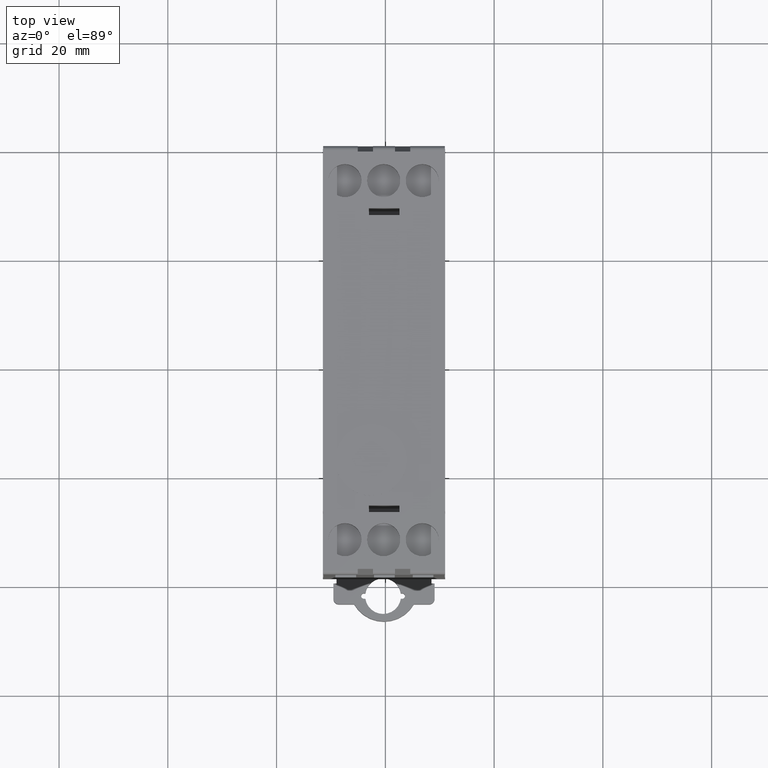
[diagram: clean part render]
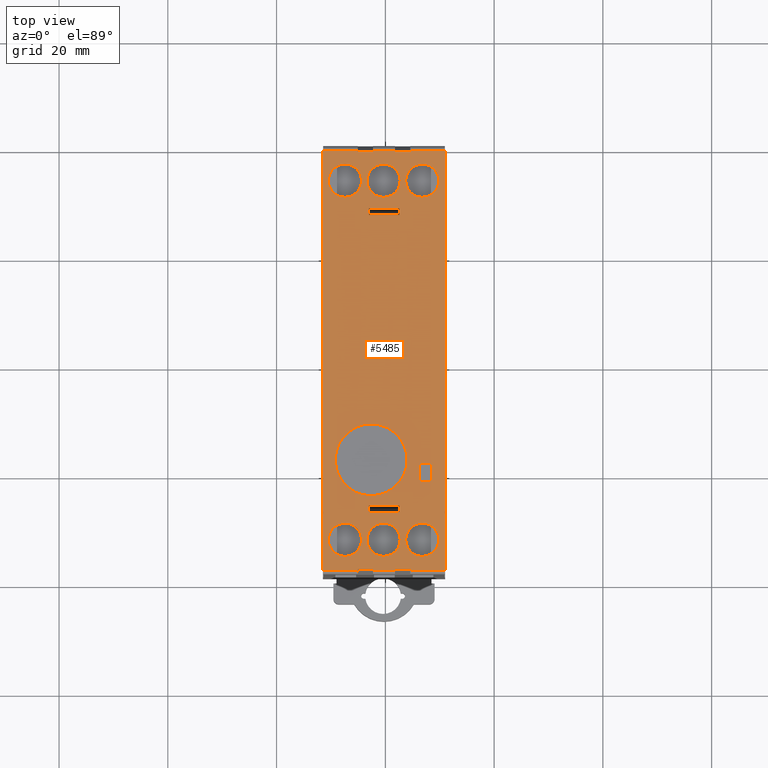
[diagram: same view with one face highlighted and labeled with its STEP entity id]
A machine part, top view. The second image highlights one B-rep face of the part: STEP entity #5485.
In plain terms, the highlighted planar face has unit normal (0, 0, 1).
Its self-contained STEP definition (entity closure, byte-faithful):
#988=DIRECTION('',(1.E0,0.E0,0.E0));
#989=VECTOR('',#988,2.794E0);
#990=CARTESIAN_POINT('',(-5.073141289026E0,3.839708004937E1,1.010173863268E2));
#991=LINE('',#990,#989);
#996=DIRECTION('',(0.E0,-1.E0,0.E0));
#997=VECTOR('',#996,2.54E-1);
#998=CARTESIAN_POINT('',(-5.073141289026E0,3.865108004937E1,1.010173863268E2));
#999=LINE('',#998,#997);
#1018=DIRECTION('',(1.E0,0.E0,0.E0));
#1019=VECTOR('',#1018,6.373199999998E0);
#1020=CARTESIAN_POINT('',(-1.144634128902E1,3.865108004937E1,1.010173863268E2));
#1021=LINE('',#1020,#1019);
#1036=DIRECTION('',(0.E0,1.E0,0.E0));
#1037=VECTOR('',#1036,7.727599999999E1);
#1038=CARTESIAN_POINT('',(-1.144634128902E1,-3.862491995062E1,
1.010173863268E2));
#1039=LINE('',#1038,#1037);
#1226=DIRECTION('',(-1.E0,0.E0,0.E0));
#1227=VECTOR('',#1226,6.373199999998E0);
#1228=CARTESIAN_POINT('',(-5.073141289026E0,-3.862491995062E1,
1.010173863268E2));
#1229=LINE('',#1228,#1227);
#1234=DIRECTION('',(0.E0,1.E0,1.678447407306E-13));
#1235=VECTOR('',#1234,2.540000000001E-1);
#1236=CARTESIAN_POINT('',(-5.073141289026E0,-3.862491995062E1,
1.010173863268E2));
#1237=LINE('',#1236,#1235);
#1238=DIRECTION('',(0.E0,-1.E0,0.E0));
#1239=VECTOR('',#1238,2.54E-1);
#1240=CARTESIAN_POINT('',(4.578858710974E0,3.865108004937E1,1.010173863268E2));
#1241=LINE('',#1240,#1239);
#1242=DIRECTION('',(0.E0,-1.E0,-1.678447407306E-13));
#1243=VECTOR('',#1242,2.540000000001E-1);
#1244=CARTESIAN_POINT('',(4.578858710974E0,-3.837091995062E1,1.010173863268E2));
#1245=LINE('',#1244,#1243);
#1246=DIRECTION('',(1.E0,0.E0,0.E0));
#1247=VECTOR('',#1246,2.794E0);
#1248=CARTESIAN_POINT('',(1.784858710974E0,-3.837091995062E1,1.010173863268E2));
#1249=LINE('',#1248,#1247);
#1250=DIRECTION('',(0.E0,1.E0,1.678447407306E-13));
#1251=VECTOR('',#1250,2.540000000001E-1);
#1252=CARTESIAN_POINT('',(1.784858710974E0,-3.862491995062E1,1.010173863268E2));
#1253=LINE('',#1252,#1251);
#1254=DIRECTION('',(0.E0,-1.E0,-1.678447407306E-13));
#1255=VECTOR('',#1254,2.540000000001E-1);
#1256=CARTESIAN_POINT('',(-2.279141289026E0,-3.837091995062E1,
1.010173863268E2));
#1257=LINE('',#1256,#1255);
#1258=DIRECTION('',(1.E0,0.E0,0.E0));
#1259=VECTOR('',#1258,2.794E0);
#1260=CARTESIAN_POINT('',(-5.073141289026E0,-3.837091995062E1,
1.010173863268E2));
#1261=LINE('',#1260,#1259);
#1262=CARTESIAN_POINT('',(6.790858710976E0,3.303308004937E1,1.010173863268E2));
#1263=DIRECTION('',(0.E0,0.E0,-1.E0));
#1264=DIRECTION('',(-1.E0,0.E0,0.E0));
#1265=AXIS2_PLACEMENT_3D('',#1262,#1263,#1264);
#1267=CARTESIAN_POINT('',(6.790858710976E0,3.303308004937E1,1.010173863268E2));
#1268=DIRECTION('',(0.E0,0.E0,-1.E0));
#1269=DIRECTION('',(0.E0,-1.E0,0.E0));
#1270=AXIS2_PLACEMENT_3D('',#1267,#1268,#1269);
#1272=CARTESIAN_POINT('',(6.790858710976E0,3.303308004937E1,1.010173863268E2));
#1273=DIRECTION('',(0.E0,0.E0,-1.E0));
#1274=DIRECTION('',(1.E0,0.E0,0.E0));
#1275=AXIS2_PLACEMENT_3D('',#1272,#1273,#1274);
#1277=CARTESIAN_POINT('',(6.790858710976E0,3.303308004937E1,1.010173863268E2));
#1278=DIRECTION('',(0.E0,0.E0,-1.E0));
#1279=DIRECTION('',(0.E0,1.E0,0.E0));
#1280=AXIS2_PLACEMENT_3D('',#1277,#1278,#1279);
#1282=CARTESIAN_POINT('',(-3.211412890243E-1,3.303308004937E1,
1.010173863268E2));
#1283=DIRECTION('',(0.E0,0.E0,-1.E0));
#1284=DIRECTION('',(-1.E0,0.E0,0.E0));
#1285=AXIS2_PLACEMENT_3D('',#1282,#1283,#1284);
#1287=CARTESIAN_POINT('',(-3.211412890243E-1,3.303308004937E1,
1.010173863268E2));
#1288=DIRECTION('',(0.E0,0.E0,-1.E0));
#1289=DIRECTION('',(0.E0,-1.E0,0.E0));
#1290=AXIS2_PLACEMENT_3D('',#1287,#1288,#1289);
#1292=CARTESIAN_POINT('',(-3.211412890243E-1,3.303308004937E1,
1.010173863268E2));
#1293=DIRECTION('',(0.E0,0.E0,-1.E0));
#1294=DIRECTION('',(1.E0,0.E0,0.E0));
#1295=AXIS2_PLACEMENT_3D('',#1292,#1293,#1294);
#1297=CARTESIAN_POINT('',(-3.211412890243E-1,3.303308004937E1,
1.010173863268E2));
#1298=DIRECTION('',(0.E0,0.E0,-1.E0));
#1299=DIRECTION('',(0.E0,1.E0,0.E0));
#1300=AXIS2_PLACEMENT_3D('',#1297,#1298,#1299);
#1302=CARTESIAN_POINT('',(-7.433141289024E0,3.303308004937E1,1.010173863268E2));
#1303=DIRECTION('',(0.E0,0.E0,-1.E0));
#1304=DIRECTION('',(-1.E0,0.E0,0.E0));
#1305=AXIS2_PLACEMENT_3D('',#1302,#1303,#1304);
#1307=CARTESIAN_POINT('',(-7.433141289024E0,3.303308004937E1,1.010173863268E2));
#1308=DIRECTION('',(0.E0,0.E0,-1.E0));
#1309=DIRECTION('',(0.E0,-1.E0,0.E0));
#1310=AXIS2_PLACEMENT_3D('',#1307,#1308,#1309);
#1312=CARTESIAN_POINT('',(-7.433141289024E0,3.303308004937E1,1.010173863268E2));
#1313=DIRECTION('',(0.E0,0.E0,-1.E0));
#1314=DIRECTION('',(1.E0,0.E0,0.E0));
#1315=AXIS2_PLACEMENT_3D('',#1312,#1313,#1314);
#1317=CARTESIAN_POINT('',(-7.433141289024E0,3.303308004937E1,1.010173863268E2));
#1318=DIRECTION('',(0.E0,0.E0,-1.E0));
#1319=DIRECTION('',(0.E0,1.E0,0.E0));
#1320=AXIS2_PLACEMENT_3D('',#1317,#1318,#1319);
#1322=CARTESIAN_POINT('',(6.790858710976E0,-3.300691995063E1,1.010173863268E2));
#1323=DIRECTION('',(0.E0,0.E0,-1.E0));
#1324=DIRECTION('',(1.E0,0.E0,0.E0));
#1325=AXIS2_PLACEMENT_3D('',#1322,#1323,#1324);
#1327=CARTESIAN_POINT('',(6.790858710976E0,-3.300691995063E1,1.010173863268E2));
#1328=DIRECTION('',(0.E0,0.E0,-1.E0));
#1329=DIRECTION('',(0.E0,1.E0,0.E0));
#1330=AXIS2_PLACEMENT_3D('',#1327,#1328,#1329);
#1332=CARTESIAN_POINT('',(6.790858710976E0,-3.300691995063E1,1.010173863268E2));
#1333=DIRECTION('',(0.E0,0.E0,-1.E0));
#1334=DIRECTION('',(-1.E0,0.E0,0.E0));
#1335=AXIS2_PLACEMENT_3D('',#1332,#1333,#1334);
#1337=CARTESIAN_POINT('',(6.790858710976E0,-3.300691995063E1,1.010173863268E2));
#1338=DIRECTION('',(0.E0,0.E0,-1.E0));
#1339=DIRECTION('',(0.E0,-1.E0,0.E0));
#1340=AXIS2_PLACEMENT_3D('',#1337,#1338,#1339);
#1342=CARTESIAN_POINT('',(-3.211412890243E-1,-3.300691995063E1,
1.010173863268E2));
#1343=DIRECTION('',(0.E0,0.E0,-1.E0));
#1344=DIRECTION('',(1.E0,0.E0,0.E0));
#1345=AXIS2_PLACEMENT_3D('',#1342,#1343,#1344);
#1347=CARTESIAN_POINT('',(-3.211412890243E-1,-3.300691995063E1,
1.010173863268E2));
#1348=DIRECTION('',(0.E0,0.E0,-1.E0));
#1349=DIRECTION('',(0.E0,1.E0,0.E0));
#1350=AXIS2_PLACEMENT_3D('',#1347,#1348,#1349);
#1352=CARTESIAN_POINT('',(-3.211412890243E-1,-3.300691995063E1,
1.010173863268E2));
#1353=DIRECTION('',(0.E0,0.E0,-1.E0));
#1354=DIRECTION('',(-1.E0,0.E0,0.E0));
#1355=AXIS2_PLACEMENT_3D('',#1352,#1353,#1354);
#1357=CARTESIAN_POINT('',(-3.211412890243E-1,-3.300691995063E1,
1.010173863268E2));
#1358=DIRECTION('',(0.E0,0.E0,-1.E0));
#1359=DIRECTION('',(0.E0,-1.E0,0.E0));
#1360=AXIS2_PLACEMENT_3D('',#1357,#1358,#1359);
#1362=CARTESIAN_POINT('',(-7.433141289024E0,-3.300691995063E1,
1.010173863268E2));
#1363=DIRECTION('',(0.E0,0.E0,-1.E0));
#1364=DIRECTION('',(1.E0,0.E0,0.E0));
#1365=AXIS2_PLACEMENT_3D('',#1362,#1363,#1364);
#1367=CARTESIAN_POINT('',(-7.433141289024E0,-3.300691995063E1,
1.010173863268E2));
#1368=DIRECTION('',(0.E0,0.E0,-1.E0));
#1369=DIRECTION('',(0.E0,1.E0,0.E0));
#1370=AXIS2_PLACEMENT_3D('',#1367,#1368,#1369);
#1372=CARTESIAN_POINT('',(-7.433141289024E0,-3.300691995063E1,
1.010173863268E2));
#1373=DIRECTION('',(0.E0,0.E0,-1.E0));
#1374=DIRECTION('',(-1.E0,0.E0,0.E0));
#1375=AXIS2_PLACEMENT_3D('',#1372,#1373,#1374);
#1377=CARTESIAN_POINT('',(-7.433141289024E0,-3.300691995063E1,
1.010173863268E2));
#1378=DIRECTION('',(0.E0,0.E0,-1.E0));
#1379=DIRECTION('',(0.E0,-1.E0,0.E0));
#1380=AXIS2_PLACEMENT_3D('',#1377,#1378,#1379);
#1382=CARTESIAN_POINT('',(-2.607141289024E0,-1.830491995063E1,
1.010173863268E2));
#1383=DIRECTION('',(0.E0,0.E0,-1.E0));
#1384=DIRECTION('',(-1.E0,0.E0,0.E0));
#1385=AXIS2_PLACEMENT_3D('',#1382,#1383,#1384);
#1387=CARTESIAN_POINT('',(-2.607141289024E0,-1.830491995063E1,
1.010173863268E2));
#1388=DIRECTION('',(0.E0,0.E0,-1.E0));
#1389=DIRECTION('',(0.E0,-1.E0,0.E0));
#1390=AXIS2_PLACEMENT_3D('',#1387,#1388,#1389);
#1392=CARTESIAN_POINT('',(-2.607141289024E0,-1.830491995063E1,
1.010173863268E2));
#1393=DIRECTION('',(0.E0,0.E0,-1.E0));
#1394=DIRECTION('',(1.E0,0.E0,0.E0));
#1395=AXIS2_PLACEMENT_3D('',#1392,#1393,#1394);
#1397=CARTESIAN_POINT('',(-2.607141289024E0,-1.830491995063E1,
1.010173863268E2));
#1398=DIRECTION('',(0.E0,0.E0,-1.E0));
#1399=DIRECTION('',(0.E0,1.E0,0.E0));
#1400=AXIS2_PLACEMENT_3D('',#1397,#1398,#1399);
#1402=DIRECTION('',(-1.E0,0.E0,0.E0));
#1403=VECTOR('',#1402,2.286E0);
#1404=CARTESIAN_POINT('',(8.462858710975E0,-2.230891995063E1,1.010173863268E2));
#1405=LINE('',#1404,#1403);
#1406=DIRECTION('',(0.E0,-1.E0,0.E0));
#1407=VECTOR('',#1406,3.302E0);
#1408=CARTESIAN_POINT('',(8.462858710975E0,-1.900691995063E1,1.010173863268E2));
#1409=LINE('',#1408,#1407);
#1410=DIRECTION('',(1.E0,0.E0,0.E0));
#1411=VECTOR('',#1410,2.286E0);
#1412=CARTESIAN_POINT('',(6.176858710975E0,-1.900691995063E1,1.010173863268E2));
#1413=LINE('',#1412,#1411);
#1414=DIRECTION('',(0.E0,1.E0,0.E0));
#1415=VECTOR('',#1414,3.302E0);
#1416=CARTESIAN_POINT('',(6.176858710975E0,-2.230891995063E1,1.010173863268E2));
#1417=LINE('',#1416,#1415);
#1418=DIRECTION('',(-1.E0,0.E0,0.E0));
#1419=VECTOR('',#1418,5.588E0);
#1420=CARTESIAN_POINT('',(2.546858710974E0,2.671308004937E1,1.010173863268E2));
#1421=LINE('',#1420,#1419);
#1422=DIRECTION('',(0.E0,-1.E0,0.E0));
#1423=VECTOR('',#1422,1.27E0);
#1424=CARTESIAN_POINT('',(2.546858710974E0,2.798308004937E1,1.010173863268E2));
#1425=LINE('',#1424,#1423);
#1426=DIRECTION('',(1.E0,0.E0,0.E0));
#1427=VECTOR('',#1426,5.588E0);
#1428=CARTESIAN_POINT('',(-3.041141289026E0,2.798308004937E1,1.010173863268E2));
#1429=LINE('',#1428,#1427);
#1430=DIRECTION('',(0.E0,1.E0,0.E0));
#1431=VECTOR('',#1430,1.27E0);
#1432=CARTESIAN_POINT('',(-3.041141289026E0,2.671308004937E1,1.010173863268E2));
#1433=LINE('',#1432,#1431);
#1434=DIRECTION('',(-1.E0,0.E0,0.E0));
#1435=VECTOR('',#1434,5.588E0);
#1436=CARTESIAN_POINT('',(2.546858710974E0,-2.795691995062E1,1.010173863268E2));
#1437=LINE('',#1436,#1435);
#1438=DIRECTION('',(0.E0,-1.E0,0.E0));
#1439=VECTOR('',#1438,1.27E0);
#1440=CARTESIAN_POINT('',(2.546858710974E0,-2.668691995062E1,1.010173863268E2));
#1441=LINE('',#1440,#1439);
#1442=DIRECTION('',(1.E0,0.E0,0.E0));
#1443=VECTOR('',#1442,5.588E0);
#1444=CARTESIAN_POINT('',(-3.041141289026E0,-2.668691995062E1,
1.010173863268E2));
#1445=LINE('',#1444,#1443);
#1446=DIRECTION('',(0.E0,1.E0,0.E0));
#1447=VECTOR('',#1446,1.27E0);
#1448=CARTESIAN_POINT('',(-3.041141289026E0,-2.795691995062E1,
1.010173863268E2));
#1449=LINE('',#1448,#1447);
#1478=DIRECTION('',(-1.E0,0.E0,0.E0));
#1479=VECTOR('',#1478,4.064E0);
#1480=CARTESIAN_POINT('',(1.784858710974E0,-3.862491995062E1,1.010173863268E2));
#1481=LINE('',#1480,#1479);
#1514=DIRECTION('',(-1.E0,0.E0,0.E0));
#1515=VECTOR('',#1514,6.373200000001E0);
#1516=CARTESIAN_POINT('',(1.095205871097E1,-3.862491995062E1,1.010173863268E2));
#1517=LINE('',#1516,#1515);
#1552=DIRECTION('',(0.E0,-1.E0,0.E0));
#1553=VECTOR('',#1552,7.727599999999E1);
#1554=CARTESIAN_POINT('',(1.095205871097E1,3.865108004937E1,1.010173863268E2));
#1555=LINE('',#1554,#1553);
#1570=DIRECTION('',(1.E0,0.E0,0.E0));
#1571=VECTOR('',#1570,6.373200000001E0);
#1572=CARTESIAN_POINT('',(4.578858710974E0,3.865108004937E1,1.010173863268E2));
#1573=LINE('',#1572,#1571);
#1592=DIRECTION('',(1.E0,0.E0,0.E0));
#1593=VECTOR('',#1592,2.794E0);
#1594=CARTESIAN_POINT('',(1.784858710974E0,3.839708004937E1,1.010173863268E2));
#1595=LINE('',#1594,#1593);
#1600=DIRECTION('',(0.E0,-1.E0,0.E0));
#1601=VECTOR('',#1600,2.54E-1);
#1602=CARTESIAN_POINT('',(1.784858710974E0,3.865108004937E1,1.010173863268E2));
#1603=LINE('',#1602,#1601);
#1622=DIRECTION('',(1.E0,0.E0,0.E0));
#1623=VECTOR('',#1622,4.064E0);
#1624=CARTESIAN_POINT('',(-2.279141289026E0,3.865108004937E1,1.010173863268E2));
#1625=LINE('',#1624,#1623);
#1644=DIRECTION('',(0.E0,1.E0,0.E0));
#1645=VECTOR('',#1644,2.54E-1);
#1646=CARTESIAN_POINT('',(-2.279141289026E0,3.839708004937E1,1.010173863268E2));
#1647=LINE('',#1646,#1645);
#3327=CARTESIAN_POINT('',(4.578858710974E0,-3.862491995062E1,1.010173863268E2));
#3328=VERTEX_POINT('',#3327);
#3385=CARTESIAN_POINT('',(-5.073141289026E0,-3.862491995062E1,
1.010173863268E2));
#3386=CARTESIAN_POINT('',(-5.073141289026E0,-3.837091995062E1,
1.010173863268E2));
#3387=VERTEX_POINT('',#3385);
#3388=VERTEX_POINT('',#3386);
#3391=CARTESIAN_POINT('',(1.095205871097E1,-3.862491995062E1,1.010173863268E2));
#3392=VERTEX_POINT('',#3391);
#3474=CARTESIAN_POINT('',(1.095205871097E1,3.865108004937E1,1.010173863268E2));
#3476=VERTEX_POINT('',#3474);
#3477=CARTESIAN_POINT('',(9.838858710976E0,3.303308004937E1,1.010173863268E2));
#3479=VERTEX_POINT('',#3477);
#3481=CARTESIAN_POINT('',(6.790858710976E0,3.608108004937E1,1.010173863268E2));
#3482=VERTEX_POINT('',#3481);
#3483=CARTESIAN_POINT('',(3.742858710976E0,3.303308004937E1,1.010173863268E2));
#3484=VERTEX_POINT('',#3483);
#3485=CARTESIAN_POINT('',(-2.279141289026E0,-3.837091995062E1,
1.010173863268E2));
#3486=VERTEX_POINT('',#3485);
#3487=CARTESIAN_POINT('',(-1.144634128902E1,-3.862491995062E1,
1.010173863268E2));
#3488=VERTEX_POINT('',#3487);
#3491=CARTESIAN_POINT('',(4.578858710974E0,-3.837091995062E1,1.010173863268E2));
#3492=VERTEX_POINT('',#3491);
#3511=CARTESIAN_POINT('',(-5.073141289026E0,3.839708004937E1,1.010173863268E2));
#3512=VERTEX_POINT('',#3511);
#3513=CARTESIAN_POINT('',(-2.279141289026E0,3.839708004937E1,1.010173863268E2));
#3514=VERTEX_POINT('',#3513);
#3555=CARTESIAN_POINT('',(6.790858710976E0,2.998508004937E1,1.010173863268E2));
#3556=VERTEX_POINT('',#3555);
#3557=CARTESIAN_POINT('',(-3.211412890243E-1,3.608108004937E1,
1.010173863268E2));
#3558=CARTESIAN_POINT('',(2.726858710976E0,3.303308004937E1,1.010173863268E2));
#3559=VERTEX_POINT('',#3557);
#3560=VERTEX_POINT('',#3558);
#3561=CARTESIAN_POINT('',(-3.369141289024E0,3.303308004937E1,1.010173863268E2));
#3562=VERTEX_POINT('',#3561);
#3563=CARTESIAN_POINT('',(-2.279141289026E0,-3.862491995062E1,
1.010173863268E2));
#3564=VERTEX_POINT('',#3563);
#3565=CARTESIAN_POINT('',(-1.144634128902E1,3.865108004937E1,1.010173863268E2));
#3566=VERTEX_POINT('',#3565);
#3617=CARTESIAN_POINT('',(4.578858710974E0,3.865108004937E1,1.010173863268E2));
#3618=VERTEX_POINT('',#3617);
#3621=CARTESIAN_POINT('',(-7.433141289024E0,3.608108004937E1,1.010173863268E2));
#3622=CARTESIAN_POINT('',(-4.385141289024E0,3.303308004937E1,1.010173863268E2));
#3623=VERTEX_POINT('',#3621);
#3624=VERTEX_POINT('',#3622);
#3625=CARTESIAN_POINT('',(-1.048114128902E1,3.303308004937E1,1.010173863268E2));
#3626=VERTEX_POINT('',#3625);
#3627=CARTESIAN_POINT('',(-3.211412890243E-1,2.998508004937E1,
1.010173863268E2));
#3628=VERTEX_POINT('',#3627);
#3629=CARTESIAN_POINT('',(1.784858710974E0,-3.862491995062E1,1.010173863268E2));
#3630=VERTEX_POINT('',#3629);
#3633=CARTESIAN_POINT('',(-5.073141289026E0,3.865108004937E1,1.010173863268E2));
#3634=VERTEX_POINT('',#3633);
#3639=CARTESIAN_POINT('',(1.784858710974E0,-3.837091995062E1,1.010173863268E2));
#3640=VERTEX_POINT('',#3639);
#3653=CARTESIAN_POINT('',(-2.279141289026E0,3.865108004937E1,1.010173863268E2));
#3654=VERTEX_POINT('',#3653);
#3689=CARTESIAN_POINT('',(6.790858710976E0,-3.605491995063E1,1.010173863268E2));
#3690=CARTESIAN_POINT('',(3.742858710976E0,-3.300691995063E1,1.010173863268E2));
#3691=VERTEX_POINT('',#3689);
#3692=VERTEX_POINT('',#3690);
#3693=CARTESIAN_POINT('',(9.838858710976E0,-3.300691995063E1,1.010173863268E2));
#3694=VERTEX_POINT('',#3693);
#3695=CARTESIAN_POINT('',(-7.433141289024E0,2.998508004937E1,1.010173863268E2));
#3696=VERTEX_POINT('',#3695);
#3707=CARTESIAN_POINT('',(4.578858710974E0,3.839708004937E1,1.010173863268E2));
#3708=VERTEX_POINT('',#3707);
#3715=CARTESIAN_POINT('',(1.784858710974E0,3.839708004937E1,1.010173863268E2));
#3716=VERTEX_POINT('',#3715);
#3759=CARTESIAN_POINT('',(-3.211412890243E-1,-3.605491995063E1,
1.010173863268E2));
#3760=CARTESIAN_POINT('',(-3.369141289024E0,-3.300691995063E1,
1.010173863268E2));
#3761=VERTEX_POINT('',#3759);
#3762=VERTEX_POINT('',#3760);
#3763=CARTESIAN_POINT('',(2.726858710976E0,-3.300691995063E1,1.010173863268E2));
#3764=VERTEX_POINT('',#3763);
#3765=CARTESIAN_POINT('',(6.790858710976E0,-2.995891995063E1,1.010173863268E2));
#3766=VERTEX_POINT('',#3765);
#3779=CARTESIAN_POINT('',(1.784858710974E0,3.865108004937E1,1.010173863268E2));
#3780=VERTEX_POINT('',#3779);
#3801=CARTESIAN_POINT('',(-7.433141289024E0,-3.605491995063E1,
1.010173863268E2));
#3802=CARTESIAN_POINT('',(-1.048114128902E1,-3.300691995063E1,
1.010173863268E2));
#3803=VERTEX_POINT('',#3801);
#3804=VERTEX_POINT('',#3802);
#3805=CARTESIAN_POINT('',(-4.385141289024E0,-3.300691995063E1,
1.010173863268E2));
#3806=VERTEX_POINT('',#3805);
#3807=CARTESIAN_POINT('',(-3.211412890243E-1,-2.995891995063E1,
1.010173863268E2));
#3808=VERTEX_POINT('',#3807);
#3833=CARTESIAN_POINT('',(-2.607141289024E0,-1.170091995063E1,
1.010173863268E2));
#3834=CARTESIAN_POINT('',(3.996858710976E0,-1.830491995063E1,1.010173863268E2));
#3835=VERTEX_POINT('',#3833);
#3836=VERTEX_POINT('',#3834);
#3837=CARTESIAN_POINT('',(-9.211141289024E0,-1.830491995063E1,
1.010173863268E2));
#3838=VERTEX_POINT('',#3837);
#3839=CARTESIAN_POINT('',(-7.433141289024E0,-2.995891995063E1,
1.010173863268E2));
#3840=VERTEX_POINT('',#3839);
#3857=CARTESIAN_POINT('',(8.462858710975E0,-2.230891995063E1,1.010173863268E2));
#3858=CARTESIAN_POINT('',(6.176858710975E0,-2.230891995063E1,1.010173863268E2));
#3859=VERTEX_POINT('',#3857);
#3860=VERTEX_POINT('',#3858);
#3861=CARTESIAN_POINT('',(-2.607141289024E0,-2.490891995063E1,
1.010173863268E2));
#3862=VERTEX_POINT('',#3861);
#3871=CARTESIAN_POINT('',(2.546858710974E0,2.671308004937E1,1.010173863268E2));
#3872=CARTESIAN_POINT('',(-3.041141289026E0,2.671308004937E1,1.010173863268E2));
#3873=VERTEX_POINT('',#3871);
#3874=VERTEX_POINT('',#3872);
#3875=CARTESIAN_POINT('',(6.176858710975E0,-1.900691995063E1,1.010173863268E2));
#3876=VERTEX_POINT('',#3875);
#3877=CARTESIAN_POINT('',(8.462858710975E0,-1.900691995063E1,1.010173863268E2));
#3878=VERTEX_POINT('',#3877);
#3887=CARTESIAN_POINT('',(2.546858710974E0,-2.795691995062E1,1.010173863268E2));
#3888=CARTESIAN_POINT('',(-3.041141289026E0,-2.795691995062E1,
1.010173863268E2));
#3889=VERTEX_POINT('',#3887);
#3890=VERTEX_POINT('',#3888);
#3891=CARTESIAN_POINT('',(-3.041141289026E0,2.798308004937E1,1.010173863268E2));
#3892=VERTEX_POINT('',#3891);
#3893=CARTESIAN_POINT('',(2.546858710974E0,2.798308004937E1,1.010173863268E2));
#3894=VERTEX_POINT('',#3893);
#3903=CARTESIAN_POINT('',(-3.041141289026E0,-2.668691995062E1,
1.010173863268E2));
#3904=VERTEX_POINT('',#3903);
#3905=CARTESIAN_POINT('',(2.546858710974E0,-2.668691995062E1,1.010173863268E2));
#3906=VERTEX_POINT('',#3905);
#5343=CARTESIAN_POINT('',(1.100285871097E1,-3.938691995062E1,1.010173863268E2));
#5344=DIRECTION('',(0.E0,0.E0,1.E0));
#5345=DIRECTION('',(0.E0,1.E0,0.E0));
#5346=AXIS2_PLACEMENT_3D('',#5343,#5344,#5345);
#5347=PLANE('',#5346);
#5349=ORIENTED_EDGE('',*,*,#5348,.F.);
#5350=ORIENTED_EDGE('',*,*,#5332,.T.);
#5351=ORIENTED_EDGE('',*,*,#5118,.T.);
#5352=ORIENTED_EDGE('',*,*,#5100,.T.);
#5353=ORIENTED_EDGE('',*,*,#5067,.T.);
#5354=ORIENTED_EDGE('',*,*,#5053,.T.);
#5356=ORIENTED_EDGE('',*,*,#5355,.T.);
#5358=ORIENTED_EDGE('',*,*,#5357,.T.);
#5360=ORIENTED_EDGE('',*,*,#5359,.T.);
#5362=ORIENTED_EDGE('',*,*,#5361,.T.);
#5364=ORIENTED_EDGE('',*,*,#5363,.F.);
#5366=ORIENTED_EDGE('',*,*,#5365,.T.);
#5368=ORIENTED_EDGE('',*,*,#5367,.T.);
#5370=ORIENTED_EDGE('',*,*,#5369,.T.);
#5372=ORIENTED_EDGE('',*,*,#5371,.F.);
#5374=ORIENTED_EDGE('',*,*,#5373,.F.);
#5376=ORIENTED_EDGE('',*,*,#5375,.F.);
#5378=ORIENTED_EDGE('',*,*,#5377,.T.);
#5380=ORIENTED_EDGE('',*,*,#5379,.F.);
#5382=ORIENTED_EDGE('',*,*,#5381,.F.);
#5383=EDGE_LOOP('',(#5349,#5350,#5351,#5352,#5353,#5354,#5356,#5358,#5360,#5362,
#5364,#5366,#5368,#5370,#5372,#5374,#5376,#5378,#5380,#5382));
#5384=FACE_OUTER_BOUND('',#5383,.F.);
#5386=ORIENTED_EDGE('',*,*,#5385,.F.);
#5388=ORIENTED_EDGE('',*,*,#5387,.F.);
#5390=ORIENTED_EDGE('',*,*,#5389,.F.);
#5392=ORIENTED_EDGE('',*,*,#5391,.F.);
#5393=EDGE_LOOP('',(#5386,#5388,#5390,#5392));
#5394=FACE_BOUND('',#5393,.F.);
#5396=ORIENTED_EDGE('',*,*,#5395,.F.);
#5398=ORIENTED_EDGE('',*,*,#5397,.F.);
#5400=ORIENTED_EDGE('',*,*,#5399,.F.);
#5402=ORIENTED_EDGE('',*,*,#5401,.F.);
#5403=EDGE_LOOP('',(#5396,#5398,#5400,#5402));
#5404=FACE_BOUND('',#5403,.F.);
#5406=ORIENTED_EDGE('',*,*,#5405,.F.);
#5408=ORIENTED_EDGE('',*,*,#5407,.F.);
#5410=ORIENTED_EDGE('',*,*,#5409,.F.);
#5412=ORIENTED_EDGE('',*,*,#5411,.F.);
#5413=EDGE_LOOP('',(#5406,#5408,#5410,#5412));
#5414=FACE_BOUND('',#5413,.F.);
#5416=ORIENTED_EDGE('',*,*,#5415,.F.);
#5418=ORIENTED_EDGE('',*,*,#5417,.F.);
#5420=ORIENTED_EDGE('',*,*,#5419,.F.);
#5422=ORIENTED_EDGE('',*,*,#5421,.F.);
#5423=EDGE_LOOP('',(#5416,#5418,#5420,#5422));
#5424=FACE_BOUND('',#5423,.F.);
#5426=ORIENTED_EDGE('',*,*,#5425,.F.);
#5428=ORIENTED_EDGE('',*,*,#5427,.F.);
#5430=ORIENTED_EDGE('',*,*,#5429,.F.);
#5432=ORIENTED_EDGE('',*,*,#5431,.F.);
#5433=EDGE_LOOP('',(#5426,#5428,#5430,#5432));
#5434=FACE_BOUND('',#5433,.F.);
#5436=ORIENTED_EDGE('',*,*,#5435,.F.);
#5438=ORIENTED_EDGE('',*,*,#5437,.F.);
#5440=ORIENTED_EDGE('',*,*,#5439,.F.);
#5442=ORIENTED_EDGE('',*,*,#5441,.F.);
#5443=EDGE_LOOP('',(#5436,#5438,#5440,#5442));
#5444=FACE_BOUND('',#5443,.F.);
#5446=ORIENTED_EDGE('',*,*,#5445,.F.);
#5448=ORIENTED_EDGE('',*,*,#5447,.F.);
#5450=ORIENTED_EDGE('',*,*,#5449,.F.);
#5452=ORIENTED_EDGE('',*,*,#5451,.F.);
#5453=EDGE_LOOP('',(#5446,#5448,#5450,#5452));
#5454=FACE_BOUND('',#5453,.F.);
#5456=ORIENTED_EDGE('',*,*,#5455,.F.);
#5458=ORIENTED_EDGE('',*,*,#5457,.F.);
#5460=ORIENTED_EDGE('',*,*,#5459,.F.);
#5462=ORIENTED_EDGE('',*,*,#5461,.F.);
#5463=EDGE_LOOP('',(#5456,#5458,#5460,#5462));
#5464=FACE_BOUND('',#5463,.F.);
#5466=ORIENTED_EDGE('',*,*,#5465,.F.);
#5468=ORIENTED_EDGE('',*,*,#5467,.F.);
#5470=ORIENTED_EDGE('',*,*,#5469,.F.);
#5472=ORIENTED_EDGE('',*,*,#5471,.F.);
#5473=EDGE_LOOP('',(#5466,#5468,#5470,#5472));
#5474=FACE_BOUND('',#5473,.F.);
#5476=ORIENTED_EDGE('',*,*,#5475,.F.);
#5478=ORIENTED_EDGE('',*,*,#5477,.F.);
#5480=ORIENTED_EDGE('',*,*,#5479,.F.);
#5482=ORIENTED_EDGE('',*,*,#5481,.F.);
#5483=EDGE_LOOP('',(#5476,#5478,#5480,#5482));
#5484=FACE_BOUND('',#5483,.F.);
#5485=ADVANCED_FACE('',(#5384,#5394,#5404,#5414,#5424,#5434,#5444,#5454,#5464,
#5474,#5484),#5347,.T.);
#1266=CIRCLE('',#1265,3.048E0);
#1271=CIRCLE('',#1270,3.048E0);
#1276=CIRCLE('',#1275,3.048E0);
#1281=CIRCLE('',#1280,3.048E0);
#1286=CIRCLE('',#1285,3.048E0);
#1291=CIRCLE('',#1290,3.048E0);
#1296=CIRCLE('',#1295,3.048E0);
#1301=CIRCLE('',#1300,3.048E0);
#1306=CIRCLE('',#1305,3.048E0);
#1311=CIRCLE('',#1310,3.048E0);
#1316=CIRCLE('',#1315,3.048E0);
#1321=CIRCLE('',#1320,3.048E0);
#1326=CIRCLE('',#1325,3.048E0);
#1331=CIRCLE('',#1330,3.048E0);
#1336=CIRCLE('',#1335,3.048E0);
#1341=CIRCLE('',#1340,3.048E0);
#1346=CIRCLE('',#1345,3.048E0);
#1351=CIRCLE('',#1350,3.048E0);
#1356=CIRCLE('',#1355,3.048E0);
#1361=CIRCLE('',#1360,3.048E0);
#1366=CIRCLE('',#1365,3.048E0);
#1371=CIRCLE('',#1370,3.048E0);
#1376=CIRCLE('',#1375,3.048E0);
#1381=CIRCLE('',#1380,3.048E0);
#1386=CIRCLE('',#1385,6.604E0);
#1391=CIRCLE('',#1390,6.604E0);
#1396=CIRCLE('',#1395,6.604E0);
#1401=CIRCLE('',#1400,6.604E0);
#5053=EDGE_CURVE('',#3512,#3514,#991,.T.);
#5067=EDGE_CURVE('',#3634,#3512,#999,.T.);
#5100=EDGE_CURVE('',#3566,#3634,#1021,.T.);
#5118=EDGE_CURVE('',#3488,#3566,#1039,.T.);
#5332=EDGE_CURVE('',#3387,#3488,#1229,.T.);
#5348=EDGE_CURVE('',#3387,#3388,#1237,.T.);
#5355=EDGE_CURVE('',#3514,#3654,#1647,.T.);
#5357=EDGE_CURVE('',#3654,#3780,#1625,.T.);
#5359=EDGE_CURVE('',#3780,#3716,#1603,.T.);
#5361=EDGE_CURVE('',#3716,#3708,#1595,.T.);
#5363=EDGE_CURVE('',#3618,#3708,#1241,.T.);
#5365=EDGE_CURVE('',#3618,#3476,#1573,.T.);
#5367=EDGE_CURVE('',#3476,#3392,#1555,.T.);
#5369=EDGE_CURVE('',#3392,#3328,#1517,.T.);
#5371=EDGE_CURVE('',#3492,#3328,#1245,.T.);
#5373=EDGE_CURVE('',#3640,#3492,#1249,.T.);
#5375=EDGE_CURVE('',#3630,#3640,#1253,.T.);
#5377=EDGE_CURVE('',#3630,#3564,#1481,.T.);
#5379=EDGE_CURVE('',#3486,#3564,#1257,.T.);
#5381=EDGE_CURVE('',#3388,#3486,#1261,.T.);
#5385=EDGE_CURVE('',#3484,#3482,#1266,.T.);
#5387=EDGE_CURVE('',#3556,#3484,#1271,.T.);
#5389=EDGE_CURVE('',#3479,#3556,#1276,.T.);
#5391=EDGE_CURVE('',#3482,#3479,#1281,.T.);
#5395=EDGE_CURVE('',#3562,#3559,#1286,.T.);
#5397=EDGE_CURVE('',#3628,#3562,#1291,.T.);
#5399=EDGE_CURVE('',#3560,#3628,#1296,.T.);
#5401=EDGE_CURVE('',#3559,#3560,#1301,.T.);
#5405=EDGE_CURVE('',#3626,#3623,#1306,.T.);
#5407=EDGE_CURVE('',#3696,#3626,#1311,.T.);
#5409=EDGE_CURVE('',#3624,#3696,#1316,.T.);
#5411=EDGE_CURVE('',#3623,#3624,#1321,.T.);
#5415=EDGE_CURVE('',#3694,#3691,#1326,.T.);
#5417=EDGE_CURVE('',#3766,#3694,#1331,.T.);
#5419=EDGE_CURVE('',#3692,#3766,#1336,.T.);
#5421=EDGE_CURVE('',#3691,#3692,#1341,.T.);
#5425=EDGE_CURVE('',#3764,#3761,#1346,.T.);
#5427=EDGE_CURVE('',#3808,#3764,#1351,.T.);
#5429=EDGE_CURVE('',#3762,#3808,#1356,.T.);
#5431=EDGE_CURVE('',#3761,#3762,#1361,.T.);
#5435=EDGE_CURVE('',#3806,#3803,#1366,.T.);
#5437=EDGE_CURVE('',#3840,#3806,#1371,.T.);
#5439=EDGE_CURVE('',#3804,#3840,#1376,.T.);
#5441=EDGE_CURVE('',#3803,#3804,#1381,.T.);
#5445=EDGE_CURVE('',#3838,#3835,#1386,.T.);
#5447=EDGE_CURVE('',#3862,#3838,#1391,.T.);
#5449=EDGE_CURVE('',#3836,#3862,#1396,.T.);
#5451=EDGE_CURVE('',#3835,#3836,#1401,.T.);
#5455=EDGE_CURVE('',#3859,#3860,#1405,.T.);
#5457=EDGE_CURVE('',#3878,#3859,#1409,.T.);
#5459=EDGE_CURVE('',#3876,#3878,#1413,.T.);
#5461=EDGE_CURVE('',#3860,#3876,#1417,.T.);
#5465=EDGE_CURVE('',#3873,#3874,#1421,.T.);
#5467=EDGE_CURVE('',#3894,#3873,#1425,.T.);
#5469=EDGE_CURVE('',#3892,#3894,#1429,.T.);
#5471=EDGE_CURVE('',#3874,#3892,#1433,.T.);
#5475=EDGE_CURVE('',#3889,#3890,#1437,.T.);
#5477=EDGE_CURVE('',#3906,#3889,#1441,.T.);
#5479=EDGE_CURVE('',#3904,#3906,#1445,.T.);
#5481=EDGE_CURVE('',#3890,#3904,#1449,.T.);